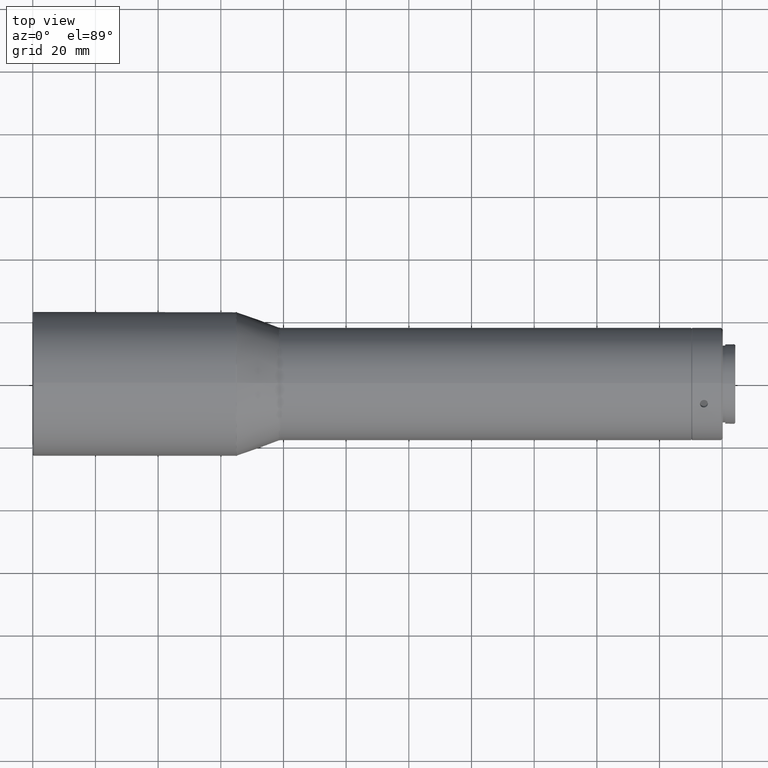
[diagram: clean part render]
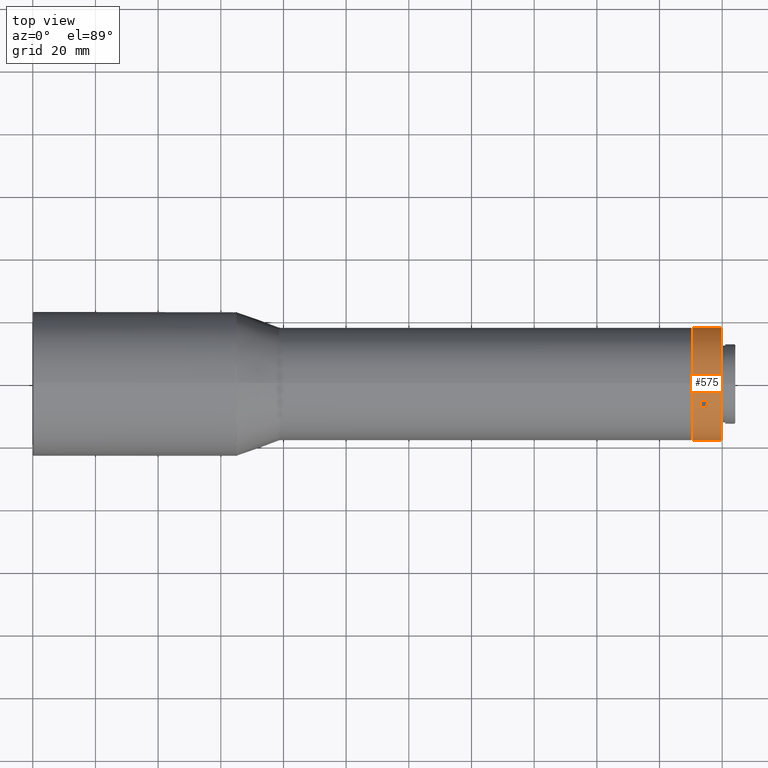
[diagram: same view with one face highlighted and labeled with its STEP entity id]
A machine part, top view. The second image highlights one B-rep face of the part: STEP entity #575.
In plain terms, the highlighted cylindrical surface (bore or boss wall) has radius 18 mm, axis along (-1, 0, 0).
Its self-contained STEP definition (entity closure, byte-faithful):
#5 = CARTESIAN_POINT ( 'NONE',  ( 693.3860338980899769, 17.63312331918380593, -3.617544228598711609 ) ) ;
#21 = CARTESIAN_POINT ( 'NONE',  ( 692.9361681631301053, -6.319565982765296575, 16.85485129358579925 ) ) ;
#25 = CARTESIAN_POINT ( 'NONE',  ( 693.0612773457091862, -6.035128622231630047, 16.95877792921812599 ) ) ;
#39 = CARTESIAN_POINT ( 'NONE',  ( 693.5239466262733004, -10.30667079046719259, -14.75725210230199558 ) ) ;
#46 = CIRCLE ( 'NONE', #458, 18.00000000000000355 ) ;
#48 = CARTESIAN_POINT ( 'NONE',  ( 694.9225851668022642, -11.94878711341109501, -13.46253344001305408 ) ) ;
#54 = CARTESIAN_POINT ( 'NONE',  ( 694.9225851668026053, 17.63328951505440401, -3.616686464619403907 ) ) ;
#56 = CARTESIAN_POINT ( 'NONE',  ( 693.5235284048869744, -12.01785231231564310, -13.40056669838811132 ) ) ;
#59 = CARTESIAN_POINT ( 'NONE',  ( 694.3191542896942110, 17.58070249249593076, -3.862499174154911064 ) ) ;
#70 = CARTESIAN_POINT ( 'NONE',  ( 694.1539529999998877, 17.94629862044067181, -1.389376056353806899 ) ) ;
#79 = FACE_BOUND ( 'NONE', #837, .T. ) ;
#83 = CARTESIAN_POINT ( 'NONE',  ( 692.9038406239671986, -6.472784356443936460, 16.79671564449179044 ) ) ;
#93 = CARTESIAN_POINT ( 'NONE',  ( 694.4815780172561972, -7.740454194361974238, 16.25082554585191730 ) ) ;
#95 = CARTESIAN_POINT ( 'NONE',  ( 695.2466290156608011, -7.204478414539099873, 16.49601215649212094 ) ) ;
#107 = DIRECTION ( 'NONE',  ( 0.000000000000000000, 0.000000000000000000, 1.000000000000000000 ) ) ;
#114 = CARTESIAN_POINT ( 'NONE',  ( 695.2466290156608011, -10.68372638138948894, -14.48726740625360776 ) ) ;
#116 = EDGE_LOOP ( 'NONE', ( #781 ) ) ;
#124 = CARTESIAN_POINT ( 'NONE',  ( 694.3191542896935289, -12.13537365316246941, -13.29408538780048765 ) ) ;
#129 = CARTESIAN_POINT ( 'NONE',  ( 693.9887562969522605, -12.13537410193711352, -13.29408497814099732 ) ) ;
#152 = CARTESIAN_POINT ( 'NONE',  ( 693.5239466262733004, -7.626819815411176151, 16.30446478413866274 ) ) ;
#155 = CARTESIAN_POINT ( 'NONE',  ( 695.3709683772533481, -6.317341902085681582, 16.85567621398044125 ) ) ;
#162 = CARTESIAN_POINT ( 'NONE',  ( 695.3717379096971172, -6.925952735488710488, 16.61487601513992729 ) ) ;
#169 = EDGE_CURVE ( 'NONE', #845, #845, #236, .T. ) ;
#173 = CARTESIAN_POINT ( 'NONE',  ( 694.4815780172561972, -10.20340065799581630, -14.82884274207328268 ) ) ;
#177 = CARTESIAN_POINT ( 'NONE',  ( 695.1531230424836849, -11.77517310556040542, -13.61464720215605162 ) ) ;
#178 = VERTEX_POINT ( 'NONE', #571 ) ;
#180 = CARTESIAN_POINT ( 'NONE',  ( 693.8263297959090323, 17.58779726965680368, -3.830580796697999890 ) ) ;
#181 = AXIS2_PLACEMENT_3D ( 'NONE', #514, #248, #315 ) ;
#190 = CARTESIAN_POINT ( 'NONE',  ( 692.9038406239673122, 17.78277462649526797, -2.792762136347573865 ) ) ;
#193 = CARTESIAN_POINT ( 'NONE',  ( 690.4539529999998422, -2.632292590603019455, -17.80648858471136364 ) ) ;
#214 = CARTESIAN_POINT ( 'NONE',  ( 693.5235284048869744, -5.596305029753968263, 17.10804875058898844 ) ) ;
#218 = CARTESIAN_POINT ( 'NONE',  ( 692.9369376990360934, -10.92403747239562151, -14.30692261403602750 ) ) ;
#222 = CARTESIAN_POINT ( 'NONE',  ( 695.2462491720301614, -6.034744968265242981, 16.95890569896510058 ) ) ;
#227 = CARTESIAN_POINT ( 'NONE',  ( 694.1539530000004561, -10.17638427043243432, -14.84726248102643886 ) ) ;
#231 = CARTESIAN_POINT ( 'NONE',  ( 693.0612773457091862, -11.66916819272587169, -13.70596366656828735 ) ) ;
#236 = CIRCLE ( 'NONE', #181, 17.99999999999998934 ) ;
#247 = CARTESIAN_POINT ( 'NONE',  ( 695.2462491720306161, 17.70421563982117519, -3.253210401604142543 ) ) ;
#248 = DIRECTION ( 'NONE',  ( -1.000000000000000000, -0.000000000000000000, -0.000000000000000000 ) ) ;
#249 = B_SPLINE_CURVE_WITH_KNOTS ( 'NONE', 3,
 ( #735, #278, #778, #152, #740, #414, #686, #751, #802, #83, #21, #25, #545, #424, #214, #486, #292, #748, #367, #683, #553, #282, #222, #155, #681, #555, #162, #95, #618, #809, #350, #93, #744, #418 ),
 .UNSPECIFIED., .T., .F.,
 ( 4, 2, 2, 2, 2, 2, 2, 2, 2, 2, 2, 2, 2, 2, 2, 2, 4 ),
 ( 0.000000000000000000, 0.0004885519476059300764, 0.0009771038952118601528, 0.001465655842817790121, 0.001954207790423720306, 0.002442759738029650490, 0.002931311685635580241, 0.003419863633241510426, 0.003908415580847440611, 0.004396967528453370362, 0.004885519476059300981, 0.005374071423665230732, 0.005862623371271160483, 0.006351175318877091101, 0.006839727266483020852, 0.007328279214088951471, 0.007816831161694881222 ),
 .UNSPECIFIED. ) ;
#253 = CARTESIAN_POINT ( 'NONE',  ( 695.3709683772536891, 17.75611475031509201, -2.956859535391664906 ) ) ;
#256 = CARTESIAN_POINT ( 'NONE',  ( 695.3717379096971172, -10.92592834209552777, -14.30548902191356575 ) ) ;
#259 = CARTESIAN_POINT ( 'NONE',  ( 695.4038400273637990, 17.78250657105517618, -2.794468420968557965 ) ) ;
#268 = CARTESIAN_POINT ( 'NONE',  ( 695.1531230424837986, 17.67821689341013780, -3.390275442296270203 ) ) ;
#278 = CARTESIAN_POINT ( 'NONE',  ( 693.9887537607352215, -7.769914350008241044, 16.23663853738007745 ) ) ;
#282 = CARTESIAN_POINT ( 'NONE',  ( 695.1531230424836849, -5.903043787849595603, 17.00492264445266599 ) ) ;
#291 = FACE_BOUND ( 'NONE', #523, .T. ) ;
#292 = CARTESIAN_POINT ( 'NONE',  ( 693.9887562969522605, -5.445328260170564150, 17.15658474577583803 ) ) ;
#302 = CARTESIAN_POINT ( 'NONE',  ( 692.9361681631301053, -11.43694640587159306, -13.90033032875967400 ) ) ;
#313 = VERTEX_POINT ( 'NONE', #568 ) ;
#315 = DIRECTION ( 'NONE',  ( 0.000000000000000000, -0.1462384772557233925, -0.9892493658172986093 ) ) ;
#317 = ORIENTED_EDGE ( 'NONE', *, *, #437, .T. ) ;
#322 = CARTESIAN_POINT ( 'NONE',  ( 693.5235284048875428, 17.61415734206959272, -3.707482052201301226 ) ) ;
#326 = CARTESIAN_POINT ( 'NONE',  ( 694.4812538894949512, -12.11133574959070813, -13.31613678099930276 ) ) ;
#330 = CARTESIAN_POINT ( 'NONE',  ( 694.1539529999998877, 17.94629862044067181, -1.389376056353806899 ) ) ;
#338 = CARTESIAN_POINT ( 'NONE',  ( 693.0612773457096409, 17.70429681495746266, -3.252814262650475463 ) ) ;
#343 = EDGE_LOOP ( 'NONE', ( #629 ) ) ;
#345 = B_SPLINE_CURVE_WITH_KNOTS ( 'NONE', 3,
 ( #227, #490, #482, #39, #755, #672, #813, #218, #824, #758, #302, #231, #492, #559, #56, #521, #129, #124, #326, #567, #48, #177, #835, #764, #454, #702, #256, #114, #515, #381, #779, #173, #377, #715 ),
 .UNSPECIFIED., .T., .F.,
 ( 4, 2, 2, 2, 2, 2, 2, 2, 2, 2, 2, 2, 2, 2, 2, 2, 4 ),
 ( 0.000000000000000000, 0.0004885519476059284501, 0.0009771038952118569001, 0.001465655842817785350, 0.001954207790423713800, 0.002442759738029642250, 0.002931311685635570700, 0.003419863633241499151, 0.003908415580847427601, 0.004396967528453355617, 0.004885519476059284501, 0.005374071423665213385, 0.005862623371271141401, 0.006351175318877069417, 0.006839727266482998301, 0.007328279214088927185, 0.007816831161694855201 ),
 .UNSPECIFIED. ) ;
#350 = CARTESIAN_POINT ( 'NONE',  ( 694.7843789346068206, -7.626610042654853316, 16.30456320525039615 ) ) ;
#357 = CARTESIAN_POINT ( 'NONE',  ( 699.6539529999998877, 0.000000000000000000, 18.00000000000000355 ) ) ;
#363 = EDGE_CURVE ( 'NONE', #178, #178, #249, .T. ) ;
#367 = CARTESIAN_POINT ( 'NONE',  ( 694.4812538894949512, -5.476444857818306033, 17.14679282340788902 ) ) ;
#377 = CARTESIAN_POINT ( 'NONE',  ( 694.3191522392659181, -10.17638427043249827, -14.84726248102640689 ) ) ;
#381 = CARTESIAN_POINT ( 'NONE',  ( 694.9218731707630923, -10.38223670815035149, -14.70451716856126190 ) ) ;
#384 = CARTESIAN_POINT ( 'NONE',  ( 692.9040659727663751, 17.83045510399110256, -2.470114279036147220 ) ) ;
#397 = CARTESIAN_POINT ( 'NONE',  ( 694.4812538894951786, 17.58778060740908700, -3.830656042408584927 ) ) ;
#401 = CARTESIAN_POINT ( 'NONE',  ( 694.3191522392654633, 17.94629862044067536, -1.389376056353806899 ) ) ;
#414 = CARTESIAN_POINT ( 'NONE',  ( 693.1547835139832614, -7.332371507401901134, 16.43927152250556034 ) ) ;
#418 = CARTESIAN_POINT ( 'NONE',  ( 694.1539530000004561, -7.769914350008177983, 16.23663853738011653 ) ) ;
#424 = CARTESIAN_POINT ( 'NONE',  ( 693.3860338980891811, -5.683676458312064028, 17.07950485677616470 ) ) ;
#430 = B_SPLINE_CURVE_WITH_KNOTS ( 'NONE', 3,
 ( #330, #847, #843, #771, #645, #586, #718, #524, #384, #190, #787, #338, #838, #5, #322, #180, #726, #59, #397, #708, #54, #268, #247, #253, #259, #712, #519, #442, #513, #777, #655, #782, #401, #70 ),
 .UNSPECIFIED., .T., .F.,
 ( 4, 2, 2, 2, 2, 2, 2, 2, 2, 2, 2, 2, 2, 2, 2, 2, 4 ),
 ( 0.000000000000000000, 0.0004885519476059284501, 0.0009771038952118569001, 0.001465655842817785350, 0.001954207790423713800, 0.002442759738029642250, 0.002931311685635570700, 0.003419863633241499151, 0.003908415580847427601, 0.004396967528453355617, 0.004885519476059284501, 0.005374071423665213385, 0.005862623371271141401, 0.006351175318877069417, 0.006839727266482998301, 0.007328279214088927185, 0.007816831161694855201 ),
 .UNSPECIFIED. ) ;
#437 = EDGE_CURVE ( 'NONE', #444, #444, #345, .T. ) ;
#442 = CARTESIAN_POINT ( 'NONE',  ( 695.2466290156604600, 17.88820479592869717, -2.008744750238169452 ) ) ;
#444 = VERTEX_POINT ( 'NONE', #461 ) ;
#454 = CARTESIAN_POINT ( 'NONE',  ( 695.4038400273635716, -11.31133392816004068, -14.00286822301295864 ) ) ;
#458 = AXIS2_PLACEMENT_3D ( 'NONE', #548, #497, #107 ) ;
#461 = CARTESIAN_POINT ( 'NONE',  ( 694.1539530000004561, -10.17638427043243610, -14.84726248102643886 ) ) ;
#477 = DIRECTION ( 'NONE',  ( -1.000000000000000000, 0.000000000000000000, 0.000000000000000000 ) ) ;
#480 = ORIENTED_EDGE ( 'NONE', *, *, #603, .T. ) ;
#482 = CARTESIAN_POINT ( 'NONE',  ( 693.8266539706287404, -10.20333615766820934, -14.82888679731512838 ) ) ;
#486 = CARTESIAN_POINT ( 'NONE',  ( 693.8263297959084639, -5.476518353639324488, 17.14676963048230007 ) ) ;
#490 = CARTESIAN_POINT ( 'NONE',  ( 693.9887537607352215, -10.17638427043236860, -14.84726248102647261 ) ) ;
#492 = CARTESIAN_POINT ( 'NONE',  ( 693.1528569321258146, -11.77359925896622528, -13.61602088440971947 ) ) ;
#497 = DIRECTION ( 'NONE',  ( -1.000000000000000000, 0.000000000000000000, 0.000000000000000000 ) ) ;
#504 = VERTEX_POINT ( 'NONE', #357 ) ;
#513 = CARTESIAN_POINT ( 'NONE',  ( 695.1550496175248099, 17.90280476441667190, -1.871695966698960323 ) ) ;
#514 = CARTESIAN_POINT ( 'NONE',  ( 690.4539529999998422, 0.000000000000000000, 0.000000000000000000 ) ) ;
#515 = CARTESIAN_POINT ( 'NONE',  ( 695.1550496175250373, -10.57233863753075553, -14.56843574162826727 ) ) ;
#519 = CARTESIAN_POINT ( 'NONE',  ( 695.3717379096971172, 17.85188107758435194, -2.309386993225982732 ) ) ;
#521 = CARTESIAN_POINT ( 'NONE',  ( 693.8263297959084639, -12.11127891601746676, -13.31618883378459728 ) ) ;
#523 = EDGE_LOOP ( 'NONE', ( #738 ) ) ;
#524 = CARTESIAN_POINT ( 'NONE',  ( 692.9369376990356386, 17.85217716993098946, -2.307032655970451263 ) ) ;
#545 = CARTESIAN_POINT ( 'NONE',  ( 693.1528569321258146, -5.905020354875055943, 17.00424649444728331 ) ) ;
#548 = CARTESIAN_POINT ( 'NONE',  ( 699.6539529999998877, 0.000000000000000000, 0.000000000000000000 ) ) ;
#552 = FACE_OUTER_BOUND ( 'NONE', #116, .T. ) ;
#553 = CARTESIAN_POINT ( 'NONE',  ( 694.9225851668022642, -5.684502401643189096, 17.07921990463268713 ) ) ;
#555 = CARTESIAN_POINT ( 'NONE',  ( 695.4040653759024053, -6.774445288860561298, 16.67733446128744035 ) ) ;
#557 = EDGE_CURVE ( 'NONE', #313, #313, #430, .T. ) ;
#559 = CARTESIAN_POINT ( 'NONE',  ( 693.3860338980891811, -11.94944686087175256, -13.46196062817797667 ) ) ;
#562 = EDGE_LOOP ( 'NONE', ( #480 ) ) ;
#567 = CARTESIAN_POINT ( 'NONE',  ( 694.7839606652772773, -12.01802346191266402, -13.40041284731605664 ) ) ;
#568 = CARTESIAN_POINT ( 'NONE',  ( 694.1539529999998877, 17.94629862044067536, -1.389376056353806899 ) ) ;
#571 = CARTESIAN_POINT ( 'NONE',  ( 694.1539530000004561, -7.769914350008177095, 16.23663853738011653 ) ) ;
#575 = ADVANCED_FACE ( 'NONE', ( #811, #291, #79, #552, #747 ), #682, .T. ) ;
#586 = CARTESIAN_POINT ( 'NONE',  ( 693.1547835139828067, 17.90301251190079412, -1.869615765858096301 ) ) ;
#601 = DIRECTION ( 'NONE',  ( 0.000000000000000000, 0.000000000000000000, 1.000000000000000000 ) ) ;
#603 = EDGE_CURVE ( 'NONE', #504, #504, #46, .T. ) ;
#618 = CARTESIAN_POINT ( 'NONE',  ( 695.1550496175250373, -7.330466126885817779, 16.44013170832755222 ) ) ;
#629 = ORIENTED_EDGE ( 'NONE', *, *, #557, .T. ) ;
#645 = CARTESIAN_POINT ( 'NONE',  ( 693.3853218769148725, 17.92551483557699754, -1.639889628216150808 ) ) ;
#655 = CARTESIAN_POINT ( 'NONE',  ( 694.7843789346063659, 17.93347095468332597, -1.547443560928356776 ) ) ;
#672 = CARTESIAN_POINT ( 'NONE',  ( 693.1547835139832614, -10.57064100449888855, -14.56965575664807311 ) ) ;
#681 = CARTESIAN_POINT ( 'NONE',  ( 695.4038400273635716, -6.471172642894996052, 16.79733664398193582 ) ) ;
#682 = CYLINDRICAL_SURFACE ( 'NONE', #704, 18.00000000000000355 ) ;
#683 = CARTESIAN_POINT ( 'NONE',  ( 694.7839606652772773, -5.596086216018657744, 17.10812004495183203 ) ) ;
#686 = CARTESIAN_POINT ( 'NONE',  ( 693.0616571845231420, -7.204846840109385475, 16.49584224563528068 ) ) ;
#702 = CARTESIAN_POINT ( 'NONE',  ( 695.4040653759024053, -11.05577266645424750, -14.20550894734482661 ) ) ;
#704 = AXIS2_PLACEMENT_3D ( 'NONE', #739, #477, #601 ) ;
#708 = CARTESIAN_POINT ( 'NONE',  ( 694.7839606652776183, 17.61410967793141324, -3.707707197635667473 ) ) ;
#712 = CARTESIAN_POINT ( 'NONE',  ( 695.4040653759024053, 17.83021795531493225, -2.471825513942197627 ) ) ;
#715 = CARTESIAN_POINT ( 'NONE',  ( 694.1539530000004561, -10.17638427043243432, -14.84726248102643886 ) ) ;
#718 = CARTESIAN_POINT ( 'NONE',  ( 693.0616571845228009, 17.88824186159531848, -2.008340728907441086 ) ) ;
#726 = CARTESIAN_POINT ( 'NONE',  ( 693.9887562969530563, 17.58070236210770787, -3.862499767635044989 ) ) ;
#735 = CARTESIAN_POINT ( 'NONE',  ( 694.1539530000004561, -7.769914350008177983, 16.23663853738011653 ) ) ;
#738 = ORIENTED_EDGE ( 'NONE', *, *, #363, .T. ) ;
#739 = CARTESIAN_POINT ( 'NONE',  ( 690.1539529999998877, 0.000000000000000000, 0.000000000000000000 ) ) ;
#740 = CARTESIAN_POINT ( 'NONE',  ( 693.3853218769152136, -7.542571340351111431, 16.34389603763239407 ) ) ;
#744 = CARTESIAN_POINT ( 'NONE',  ( 694.3191522392659181, -7.769914350008114035, 16.23663853738015561 ) ) ;
#747 = FACE_BOUND ( 'NONE', #343, .T. ) ;
#748 = CARTESIAN_POINT ( 'NONE',  ( 694.3191542896935289, -5.445328839333414273, 17.15658456195532722 ) ) ;
#751 = CARTESIAN_POINT ( 'NONE',  ( 692.9369376990360934, -6.928139697535380392, 16.61395527000580685 ) ) ;
#755 = CARTESIAN_POINT ( 'NONE',  ( 693.3853218769152136, -10.38294349522586124, -14.70400640941675441 ) ) ;
#758 = CARTESIAN_POINT ( 'NONE',  ( 692.9038406239671986, -11.30999027005135460, -14.00395350814491024 ) ) ;
#764 = CARTESIAN_POINT ( 'NONE',  ( 695.3709683772533481, -11.43877284822927365, -13.89881667858838021 ) ) ;
#771 = CARTESIAN_POINT ( 'NONE',  ( 693.5239466262727319, 17.93349060587840071, -1.547212681837099035 ) ) ;
#777 = CARTESIAN_POINT ( 'NONE',  ( 694.9218731707626375, 17.92560377243367498, -1.639022153080695432 ) ) ;
#778 = CARTESIAN_POINT ( 'NONE',  ( 693.8266539706287404, -7.740524597484391478, 16.25079171455058358 ) ) ;
#779 = CARTESIAN_POINT ( 'NONE',  ( 694.7843789346068206, -10.30686091202838561, -14.75711964432186818 ) ) ;
#781 = ORIENTED_EDGE ( 'NONE', *, *, #169, .F. ) ;
#782 = CARTESIAN_POINT ( 'NONE',  ( 694.4815780172556288, 17.94385485235786248, -1.421982803778605975 ) ) ;
#787 = CARTESIAN_POINT ( 'NONE',  ( 692.9361681631304464, 17.75651238863686388, -2.954520964826815810 ) ) ;
#802 = CARTESIAN_POINT ( 'NONE',  ( 692.9040659727663751, -6.776045836100152542, 16.67668422061203515 ) ) ;
#809 = CARTESIAN_POINT ( 'NONE',  ( 694.9218731707630923, -7.543367064283225787, 16.34353932164219358 ) ) ;
#811 = FACE_OUTER_BOUND ( 'NONE', #562, .T. ) ;
#813 = CARTESIAN_POINT ( 'NONE',  ( 693.0616571845231420, -10.68339502148592679, -14.48750151672845554 ) ) ;
#824 = CARTESIAN_POINT ( 'NONE',  ( 692.9040659727663751, -11.05440926789096778, -14.20656994157656783 ) ) ;
#835 = CARTESIAN_POINT ( 'NONE',  ( 695.2462491720301614, -11.66947067155579454, -13.70569529736061654 ) ) ;
#837 = EDGE_LOOP ( 'NONE', ( #317 ) ) ;
#838 = CARTESIAN_POINT ( 'NONE',  ( 693.1528569321260420, 17.67861961384127056, -3.388225610038183344 ) ) ;
#843 = CARTESIAN_POINT ( 'NONE',  ( 693.8266539706279445, 17.94386075515265588, -1.421904917235732313 ) ) ;
#845 = VERTEX_POINT ( 'NONE', #193 ) ;
#847 = CARTESIAN_POINT ( 'NONE',  ( 693.9887537607344257, 17.94629862044066471, -1.389376056353807121 ) ) ;